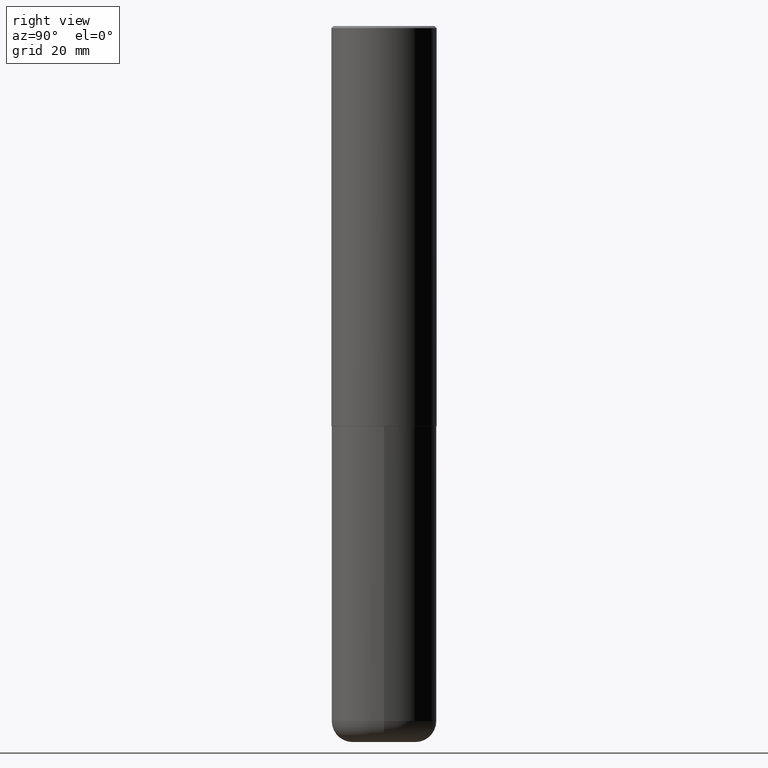
[diagram: clean part render]
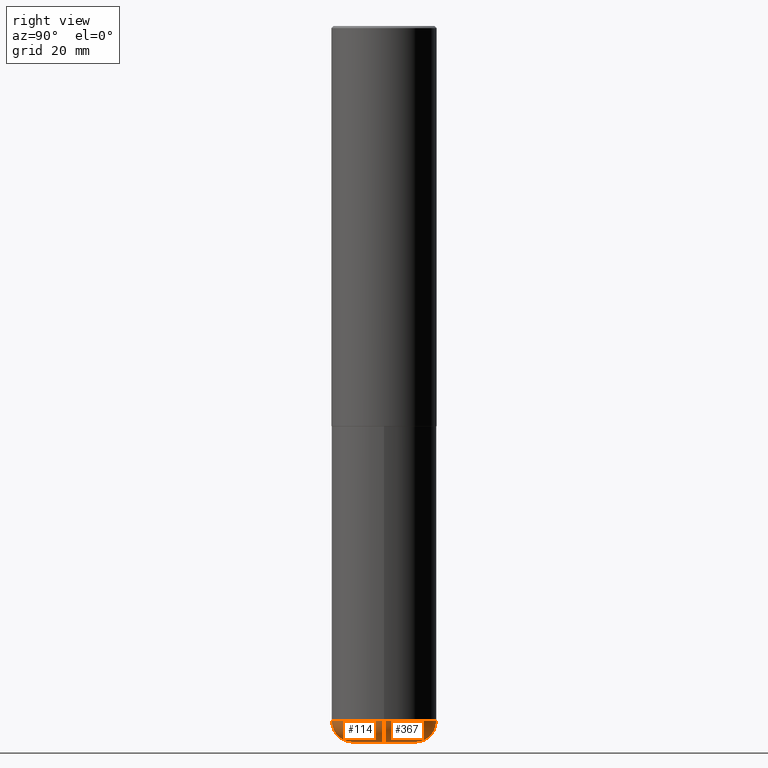
[diagram: same view with one multi-face feature highlighted, each face labeled with its STEP entity id]
A machine part, right view. The highlighted faces form ONE feature: a constant-radius fillet chain: 2 tangent blend faces with common blend radius 5.0013 mm. The faces share edges in the B-rep.
Their STEP definitions:
[1] entity #114 (Torus):
#13 = EDGE_CURVE ( 'NONE', #402, #251, #363, .T. ) ;
#27 = ORIENTED_EDGE ( 'NONE', *, *, #393, .F. ) ;
#41 = CARTESIAN_POINT ( 'NONE',  ( 1.588576536497864771E-28, -2.268066277712507367E-14, -6.495999999999999552 ) ) ;
#53 = CIRCLE ( 'NONE', #296, 0.4921499999999999764 ) ;
#56 = CARTESIAN_POINT ( 'NONE',  ( 0.4921499999999997543, -2.611732785894836787E-14, -6.495999999999999552 ) ) ;
#57 = AXIS2_PLACEMENT_3D ( 'NONE', #246, #400, #109 ) ;
#95 = CARTESIAN_POINT ( 'NONE',  ( -0.2952499999999999569, -2.058278534979337620E-14, -6.495999999999999552 ) ) ;
#100 = CARTESIAN_POINT ( 'NONE',  ( 0.2952500000000000124, -2.542985518333015688E-14, -6.692899999999998961 ) ) ;
#103 = CARTESIAN_POINT ( 'NONE',  ( -0.4921499999999997543, -1.918372670308173998E-14, -6.495999999999999552 ) ) ;
#106 = CARTESIAN_POINT ( 'NONE',  ( -0.2952500000000000124, -2.022699236424666989E-14, -6.692899999999998961 ) ) ;
#109 = DIRECTION ( 'NONE',  ( 1.000000000000000000, -6.982962677686264344E-15, 4.883557194083111780E-29 ) ) ;
#114 = ADVANCED_FACE ( 'NONE', ( #283 ), #412, .T. ) ;
#116 = VERTEX_POINT ( 'NONE', #106 ) ;
#121 = ORIENTED_EDGE ( 'NONE', *, *, #13, .T. ) ;
#123 = EDGE_LOOP ( 'NONE', ( #259, #372, #121, #27 ) ) ;
#149 = VERTEX_POINT ( 'NONE', #103 ) ;
#157 = DIRECTION ( 'NONE',  ( 1.000000000000000000, -6.982962677686273021E-15, 0.000000000000000000 ) ) ;
#171 = DIRECTION ( 'NONE',  ( 1.000000000000000000, -6.982962677686265922E-15, 0.000000000000000000 ) ) ;
#191 = CARTESIAN_POINT ( 'NONE',  ( 0.2952499999999999569, -2.474238250771194590E-14, -6.495999999999999552 ) ) ;
#199 = DIRECTION ( 'NONE',  ( 1.000000000000000000, -6.982962677686270655E-15, 0.000000000000000000 ) ) ;
#222 = EDGE_CURVE ( 'NONE', #116, #402, #406, .T. ) ;
#225 = DIRECTION ( 'NONE',  ( -6.982962677686266711E-15, -1.000000000000000000, 3.491481338843145583E-15 ) ) ;
#235 = DIRECTION ( 'NONE',  ( -1.000000000000000000, 7.105427357601008170E-15, 0.000000000000000000 ) ) ;
#246 = CARTESIAN_POINT ( 'NONE',  ( 1.588576536497864771E-28, -2.268066277712507367E-14, -6.495999999999999552 ) ) ;
#247 = AXIS2_PLACEMENT_3D ( 'NONE', #191, #225, #199 ) ;
#251 = VERTEX_POINT ( 'NONE', #56 ) ;
#259 = ORIENTED_EDGE ( 'NONE', *, *, #361, .F. ) ;
#278 = DIRECTION ( 'NONE',  ( -2.445468806185136597E-29, 3.491481338843145583E-15, 1.000000000000000000 ) ) ;
#283 = FACE_OUTER_BOUND ( 'NONE', #123, .T. ) ;
#296 = AXIS2_PLACEMENT_3D ( 'NONE', #41, #278, #171 ) ;
#322 = CIRCLE ( 'NONE', #391, 0.1968999999999995754 ) ;
#323 = AXIS2_PLACEMENT_3D ( 'NONE', #375, #411, #157 ) ;
#333 = DIRECTION ( 'NONE',  ( 7.105427357601001859E-15, 1.000000000000000000, -3.491481338843145583E-15 ) ) ;
#361 = EDGE_CURVE ( 'NONE', #116, #149, #322, .T. ) ;
#363 = CIRCLE ( 'NONE', #247, 0.1968999999999995754 ) ;
#372 = ORIENTED_EDGE ( 'NONE', *, *, #222, .T. ) ;
#375 = CARTESIAN_POINT ( 'NONE',  ( 1.636727817291649742E-28, -2.336813545274328465E-14, -6.692899999999998961 ) ) ;
#391 = AXIS2_PLACEMENT_3D ( 'NONE', #95, #333, #235 ) ;
#393 = EDGE_CURVE ( 'NONE', #149, #251, #53, .T. ) ;
#400 = DIRECTION ( 'NONE',  ( -2.445468806185136597E-29, 3.491481338843145583E-15, 1.000000000000000000 ) ) ;
#402 = VERTEX_POINT ( 'NONE', #100 ) ;
#406 = CIRCLE ( 'NONE', #323, 0.2952500000000000124 ) ;
#411 = DIRECTION ( 'NONE',  ( -2.445468806185136597E-29, 3.491481338843145583E-15, 1.000000000000000000 ) ) ;
#412 = TOROIDAL_SURFACE ( 'NONE', #57, 0.2952499999999999569, 0.1968999999999996031 ) ;
[2] entity #367 (Torus):
#4 = EDGE_CURVE ( 'NONE', #402, #116, #306, .T. ) ;
#13 = EDGE_CURVE ( 'NONE', #402, #251, #363, .T. ) ;
#24 = DIRECTION ( 'NONE',  ( -2.445468806185136597E-29, 3.491481338843145583E-15, 1.000000000000000000 ) ) ;
#38 = EDGE_CURVE ( 'NONE', #251, #149, #287, .T. ) ;
#40 = FACE_OUTER_BOUND ( 'NONE', #252, .T. ) ;
#56 = CARTESIAN_POINT ( 'NONE',  ( 0.4921499999999997543, -2.611732785894836787E-14, -6.495999999999999552 ) ) ;
#95 = CARTESIAN_POINT ( 'NONE',  ( -0.2952499999999999569, -2.058278534979337620E-14, -6.495999999999999552 ) ) ;
#100 = CARTESIAN_POINT ( 'NONE',  ( 0.2952500000000000124, -2.542985518333015688E-14, -6.692899999999998961 ) ) ;
#103 = CARTESIAN_POINT ( 'NONE',  ( -0.4921499999999997543, -1.918372670308173998E-14, -6.495999999999999552 ) ) ;
#106 = CARTESIAN_POINT ( 'NONE',  ( -0.2952500000000000124, -2.022699236424666989E-14, -6.692899999999998961 ) ) ;
#116 = VERTEX_POINT ( 'NONE', #106 ) ;
#126 = TOROIDAL_SURFACE ( 'NONE', #214, 0.2952499999999999569, 0.1968999999999996031 ) ;
#133 = AXIS2_PLACEMENT_3D ( 'NONE', #347, #376, #202 ) ;
#149 = VERTEX_POINT ( 'NONE', #103 ) ;
#155 = DIRECTION ( 'NONE',  ( 1.000000000000000000, -6.982962677686265922E-15, 0.000000000000000000 ) ) ;
#160 = CARTESIAN_POINT ( 'NONE',  ( 1.588576536497864771E-28, -2.268066277712507367E-14, -6.495999999999999552 ) ) ;
#190 = ORIENTED_EDGE ( 'NONE', *, *, #38, .F. ) ;
#191 = CARTESIAN_POINT ( 'NONE',  ( 0.2952499999999999569, -2.474238250771194590E-14, -6.495999999999999552 ) ) ;
#199 = DIRECTION ( 'NONE',  ( 1.000000000000000000, -6.982962677686270655E-15, 0.000000000000000000 ) ) ;
#202 = DIRECTION ( 'NONE',  ( 1.000000000000000000, -6.982962677686273021E-15, 0.000000000000000000 ) ) ;
#203 = DIRECTION ( 'NONE',  ( 1.000000000000000000, -6.982962677686264344E-15, 4.883557194083111780E-29 ) ) ;
#204 = CARTESIAN_POINT ( 'NONE',  ( 1.588576536497864771E-28, -2.268066277712507367E-14, -6.495999999999999552 ) ) ;
#206 = AXIS2_PLACEMENT_3D ( 'NONE', #160, #24, #155 ) ;
#214 = AXIS2_PLACEMENT_3D ( 'NONE', #204, #330, #203 ) ;
#225 = DIRECTION ( 'NONE',  ( -6.982962677686266711E-15, -1.000000000000000000, 3.491481338843145583E-15 ) ) ;
#235 = DIRECTION ( 'NONE',  ( -1.000000000000000000, 7.105427357601008170E-15, 0.000000000000000000 ) ) ;
#247 = AXIS2_PLACEMENT_3D ( 'NONE', #191, #225, #199 ) ;
#251 = VERTEX_POINT ( 'NONE', #56 ) ;
#252 = EDGE_LOOP ( 'NONE', ( #328, #257, #190, #409 ) ) ;
#257 = ORIENTED_EDGE ( 'NONE', *, *, #361, .T. ) ;
#287 = CIRCLE ( 'NONE', #206, 0.4921499999999999764 ) ;
#306 = CIRCLE ( 'NONE', #133, 0.2952500000000000124 ) ;
#322 = CIRCLE ( 'NONE', #391, 0.1968999999999995754 ) ;
#328 = ORIENTED_EDGE ( 'NONE', *, *, #4, .T. ) ;
#330 = DIRECTION ( 'NONE',  ( -2.445468806185136597E-29, 3.491481338843145583E-15, 1.000000000000000000 ) ) ;
#333 = DIRECTION ( 'NONE',  ( 7.105427357601001859E-15, 1.000000000000000000, -3.491481338843145583E-15 ) ) ;
#347 = CARTESIAN_POINT ( 'NONE',  ( 1.636727817291649742E-28, -2.336813545274328465E-14, -6.692899999999998961 ) ) ;
#361 = EDGE_CURVE ( 'NONE', #116, #149, #322, .T. ) ;
#363 = CIRCLE ( 'NONE', #247, 0.1968999999999995754 ) ;
#367 = ADVANCED_FACE ( 'NONE', ( #40 ), #126, .T. ) ;
#376 = DIRECTION ( 'NONE',  ( -2.445468806185136597E-29, 3.491481338843145583E-15, 1.000000000000000000 ) ) ;
#391 = AXIS2_PLACEMENT_3D ( 'NONE', #95, #333, #235 ) ;
#402 = VERTEX_POINT ( 'NONE', #100 ) ;
#409 = ORIENTED_EDGE ( 'NONE', *, *, #13, .F. ) ;